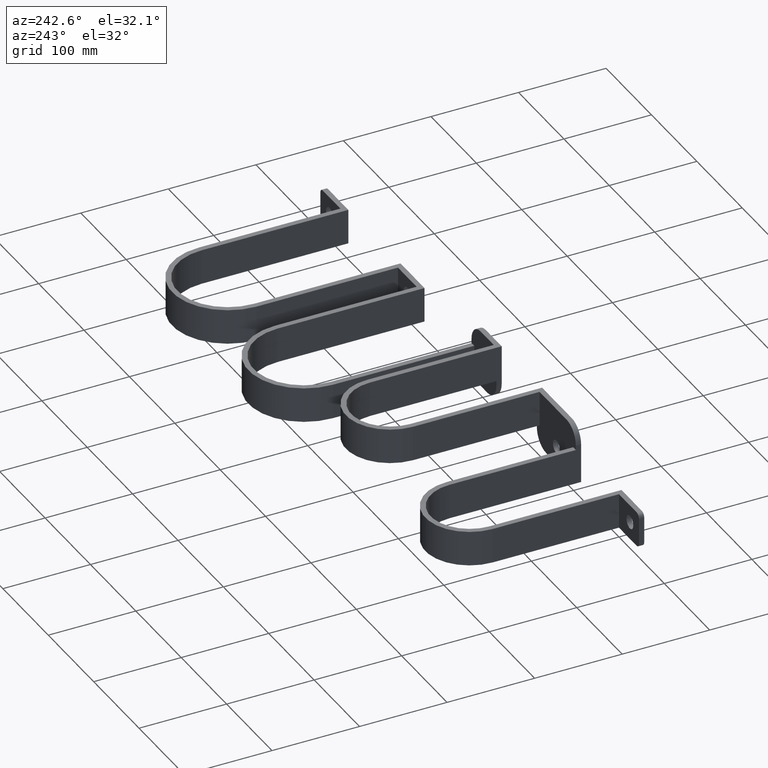
[diagram: clean part render]
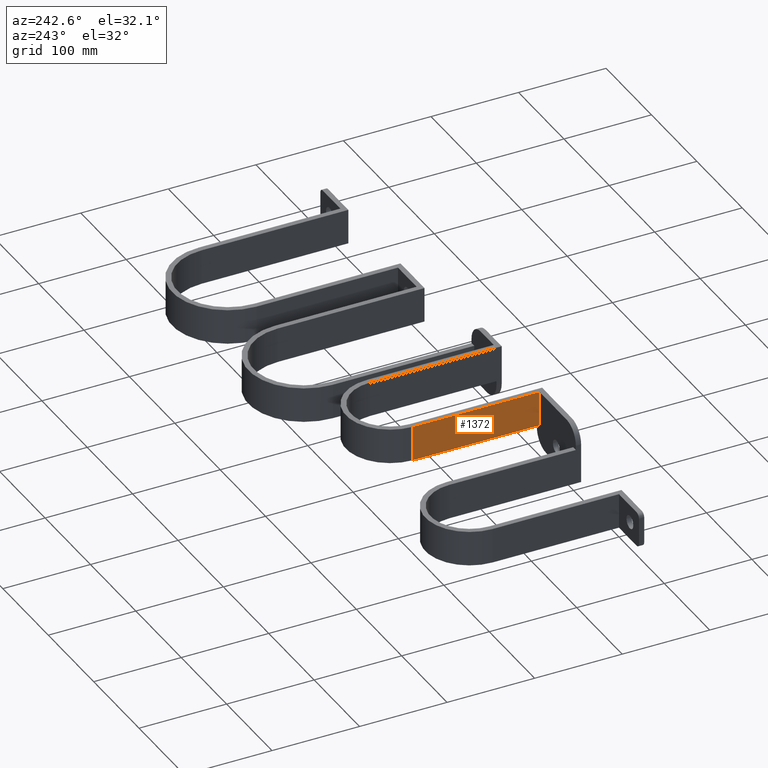
[diagram: same view with one face highlighted and labeled with its STEP entity id]
A machine part, auxiliary view. The second image highlights one B-rep face of the part: STEP entity #1372.
In plain terms, the highlighted planar face has unit normal (-1, 0, 0).
Its self-contained STEP definition (entity closure, byte-faithful):
#37 = ORIENTED_EDGE ( 'NONE', *, *, #922, .T. ) ;
#40 = CARTESIAN_POINT ( 'NONE',  ( -50.49999999999999289, 5.999999999999985789, -20.00000000000000000 ) ) ;
#62 = LINE ( 'NONE', #40, #1724 ) ;
#272 = DIRECTION ( 'NONE',  ( -1.000000000000000000, -0.000000000000000000, 0.000000000000000000 ) ) ;
#276 = EDGE_CURVE ( 'NONE', #1532, #1671, #842, .T. ) ;
#404 = VECTOR ( 'NONE', #2420, 1000.000000000000000 ) ;
#416 = DIRECTION ( 'NONE',  ( -0.000000000000000000, -0.000000000000000000, -1.000000000000000000 ) ) ;
#493 = VECTOR ( 'NONE', #416, 1000.000000000000000 ) ;
#504 = CARTESIAN_POINT ( 'NONE',  ( -50.49999999999999289, 5.999999999999985789, 20.00000000000000000 ) ) ;
#600 = CARTESIAN_POINT ( 'NONE',  ( -50.49999999999999289, 5.999999999999985789, 20.00000000000000000 ) ) ;
#777 = ORIENTED_EDGE ( 'NONE', *, *, #2170, .T. ) ;
#830 = PLANE ( 'NONE',  #2399 ) ;
#839 = VECTOR ( 'NONE', #2141, 1000.000000000000000 ) ;
#842 = LINE ( 'NONE', #1684, #493 ) ;
#922 = EDGE_CURVE ( 'NONE', #1532, #2486, #1929, .T. ) ;
#1050 = EDGE_CURVE ( 'NONE', #1671, #1923, #62, .T. ) ;
#1372 = ADVANCED_FACE ( 'NONE', ( #1436 ), #830, .T. ) ;
#1396 = LINE ( 'NONE', #1623, #404 ) ;
#1436 = FACE_OUTER_BOUND ( 'NONE', #2577, .T. ) ;
#1470 = CARTESIAN_POINT ( 'NONE',  ( -50.49999999999999289, 150.5000000000000284, 20.00000000000000000 ) ) ;
#1484 = CARTESIAN_POINT ( 'NONE',  ( -50.49999999999999289, 5.999999999999985789, 20.00000000000000000 ) ) ;
#1532 = VERTEX_POINT ( 'NONE', #1484 ) ;
#1619 = CARTESIAN_POINT ( 'NONE',  ( -50.49999999999999289, 5.999999999999985789, -20.00000000000000000 ) ) ;
#1623 = CARTESIAN_POINT ( 'NONE',  ( -50.49999999999999289, 150.5000000000000284, 20.00000000000000000 ) ) ;
#1671 = VERTEX_POINT ( 'NONE', #1619 ) ;
#1684 = CARTESIAN_POINT ( 'NONE',  ( -50.49999999999999289, 5.999999999999985789, 20.00000000000000000 ) ) ;
#1692 = ORIENTED_EDGE ( 'NONE', *, *, #276, .F. ) ;
#1724 = VECTOR ( 'NONE', #2555, 1000.000000000000000 ) ;
#1923 = VERTEX_POINT ( 'NONE', #2533 ) ;
#1929 = LINE ( 'NONE', #504, #839 ) ;
#2018 = ORIENTED_EDGE ( 'NONE', *, *, #1050, .F. ) ;
#2141 = DIRECTION ( 'NONE',  ( -0.000000000000000000, 1.000000000000000000, 0.000000000000000000 ) ) ;
#2170 = EDGE_CURVE ( 'NONE', #2486, #1923, #1396, .T. ) ;
#2258 = DIRECTION ( 'NONE',  ( 0.000000000000000000, 0.000000000000000000, 1.000000000000000000 ) ) ;
#2399 = AXIS2_PLACEMENT_3D ( 'NONE', #600, #272, #2258 ) ;
#2420 = DIRECTION ( 'NONE',  ( -0.000000000000000000, -0.000000000000000000, -1.000000000000000000 ) ) ;
#2486 = VERTEX_POINT ( 'NONE', #1470 ) ;
#2533 = CARTESIAN_POINT ( 'NONE',  ( -50.49999999999999289, 150.5000000000000284, -20.00000000000000000 ) ) ;
#2555 = DIRECTION ( 'NONE',  ( -0.000000000000000000, 1.000000000000000000, 0.000000000000000000 ) ) ;
#2577 = EDGE_LOOP ( 'NONE', ( #2018, #1692, #37, #777 ) ) ;